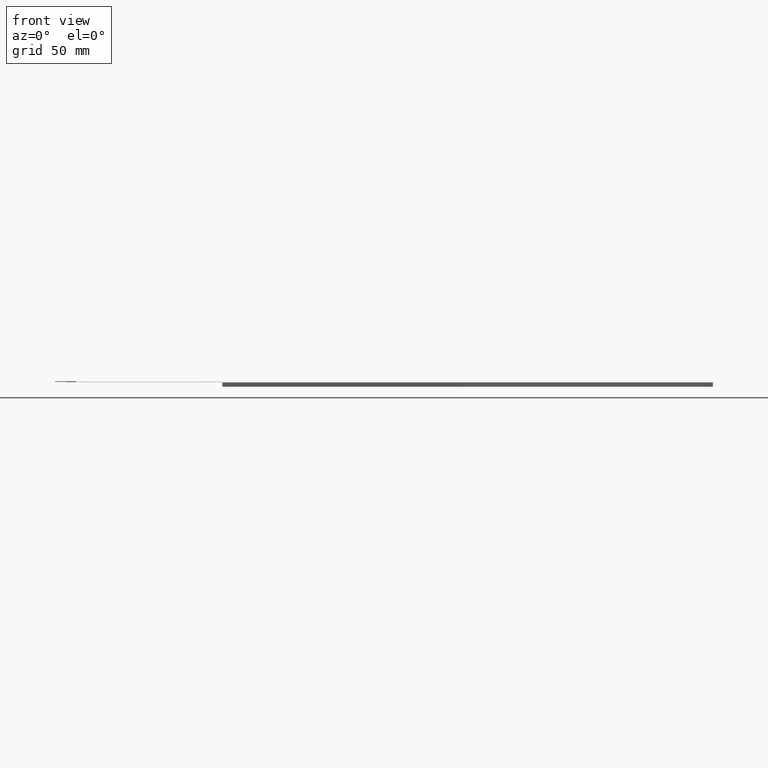
[diagram: clean part render]
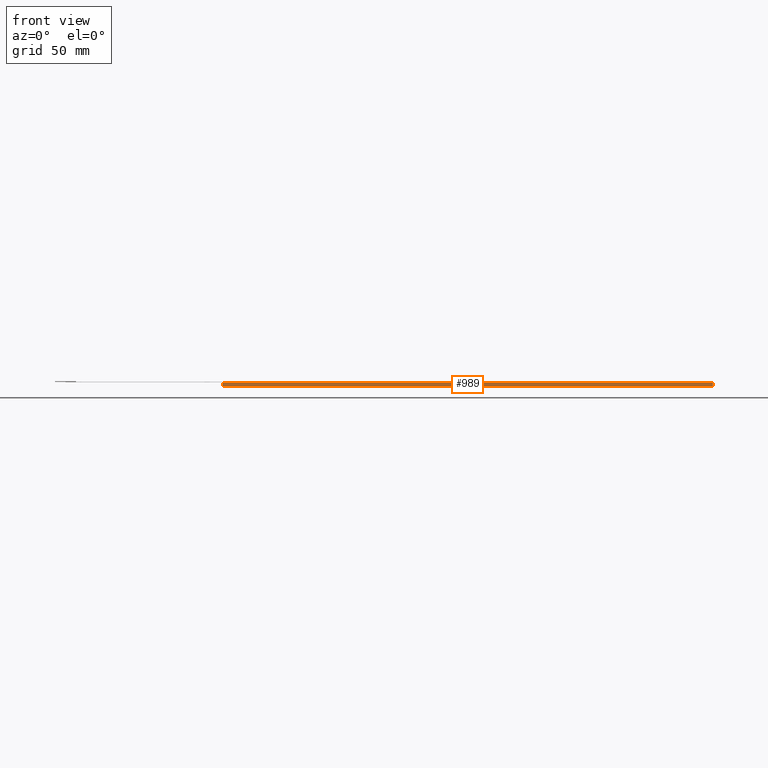
[diagram: same view with one face highlighted and labeled with its STEP entity id]
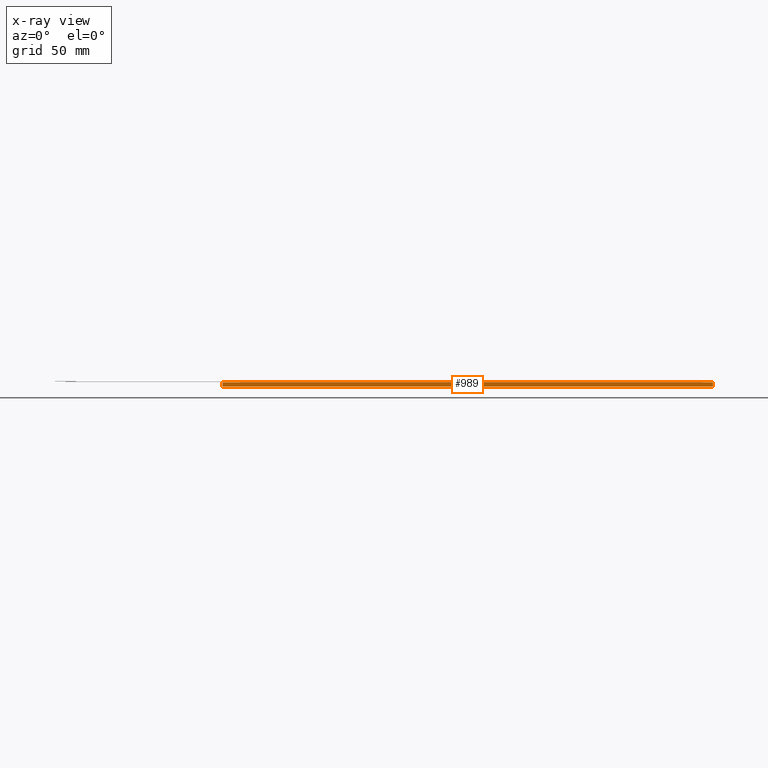
[diagram: x-ray of the same camera — body ghosted, the highlighted face saturated]
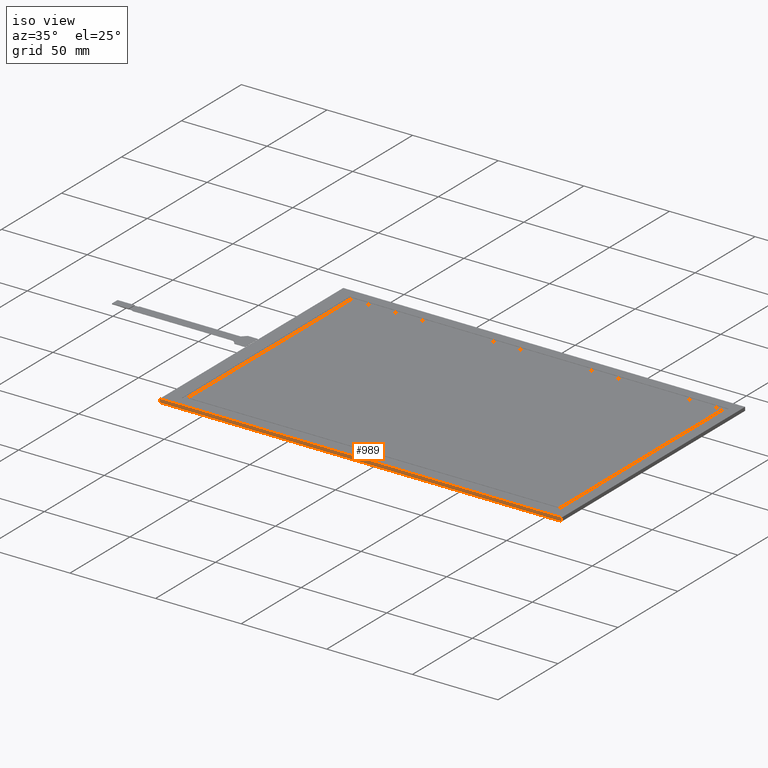
[diagram: same view with one face highlighted and labeled with its STEP entity id]
A machine part, front view. The second image highlights one B-rep face of the part: STEP entity #989.
The next image is the same camera in x-ray: the body ghosted, the highlighted face saturated — about 0% of this face is hidden behind the body in this view.
A second angle (iso view) of the same face is appended — the face is thin or edge-on in the first view.
In plain terms, the highlighted planar face has unit normal (0, -1, 0).
Its self-contained STEP definition (entity closure, byte-faithful):
#79=FACE_OUTER_BOUND('',#133,.T.);
#133=EDGE_LOOP('',(#708,#709,#710,#711));
#200=LINE('',#1428,#326);
#204=LINE('',#1435,#330);
#205=LINE('',#1438,#331);
#206=LINE('',#1439,#332);
#326=VECTOR('',#1163,10.);
#330=VECTOR('',#1169,10.);
#331=VECTOR('',#1172,10.);
#332=VECTOR('',#1173,10.);
#444=VERTEX_POINT('',#1425);
#445=VERTEX_POINT('',#1427);
#447=VERTEX_POINT('',#1433);
#448=VERTEX_POINT('',#1437);
#544=EDGE_CURVE('',#444,#445,#200,.T.);
#548=EDGE_CURVE('',#444,#447,#204,.T.);
#549=EDGE_CURVE('',#448,#447,#205,.T.);
#550=EDGE_CURVE('',#445,#448,#206,.T.);
#708=ORIENTED_EDGE('',*,*,#544,.F.);
#709=ORIENTED_EDGE('',*,*,#548,.T.);
#710=ORIENTED_EDGE('',*,*,#549,.F.);
#711=ORIENTED_EDGE('',*,*,#550,.F.);
#943=PLANE('',#1062);
#989=ADVANCED_FACE('',(#79),#943,.T.);
#1062=AXIS2_PLACEMENT_3D('',#1436,#1170,#1171);
#1163=DIRECTION('',(1.,1.13529410272705E-16,0.));
#1169=DIRECTION('',(0.,0.,-1.));
#1170=DIRECTION('center_axis',(1.13529410272705E-16,-1.,0.));
#1171=DIRECTION('ref_axis',(-1.,-1.13529410272705E-16,0.));
#1172=DIRECTION('',(-1.,-1.13529410272705E-16,0.));
#1173=DIRECTION('',(0.,0.,-1.));
#1425=CARTESIAN_POINT('',(-118.99,-76.5,0.));
#1427=CARTESIAN_POINT('',(115.71,-76.5,0.));
#1428=CARTESIAN_POINT('',(-118.99,-76.5,0.));
#1433=CARTESIAN_POINT('',(-118.99,-76.5,-2.1));
#1435=CARTESIAN_POINT('',(-118.99,-76.5,0.));
#1436=CARTESIAN_POINT('Origin',(115.71,-76.5,0.));
#1437=CARTESIAN_POINT('',(115.71,-76.5,-2.1));
#1438=CARTESIAN_POINT('',(-118.99,-76.5,-2.1));
#1439=CARTESIAN_POINT('',(115.71,-76.5,0.));